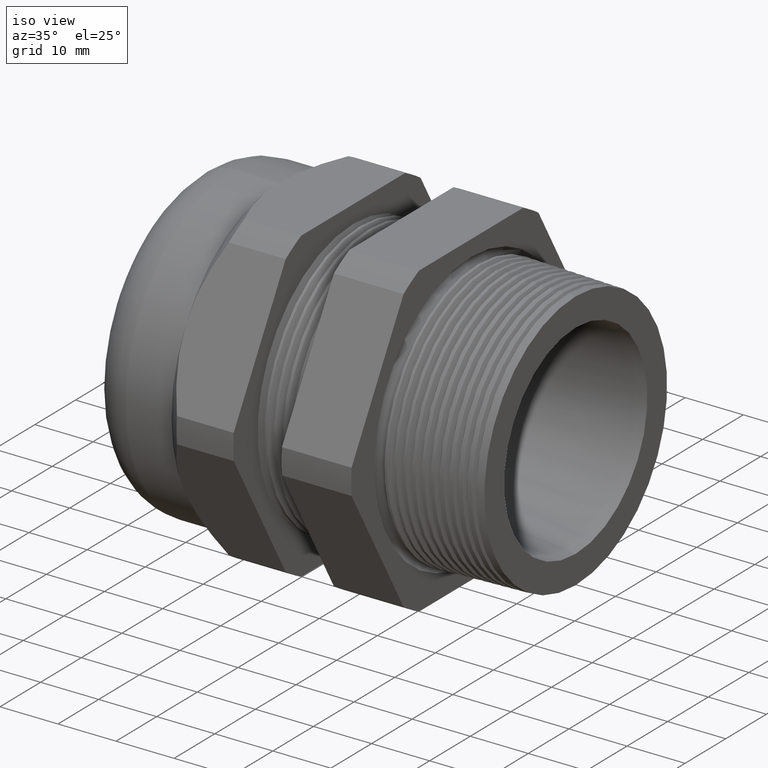
[diagram: clean part render]
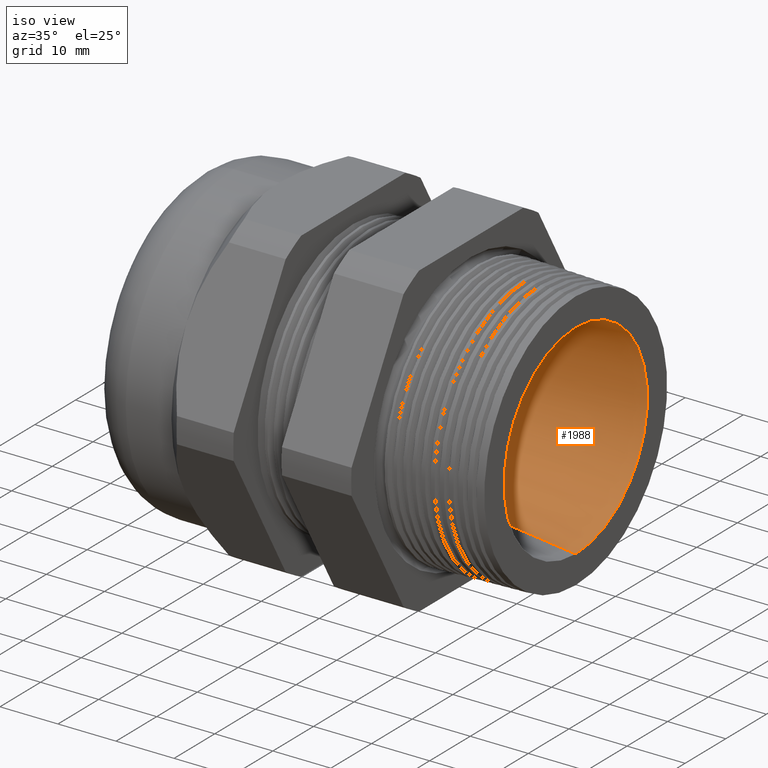
[diagram: same view with one face highlighted and labeled with its STEP entity id]
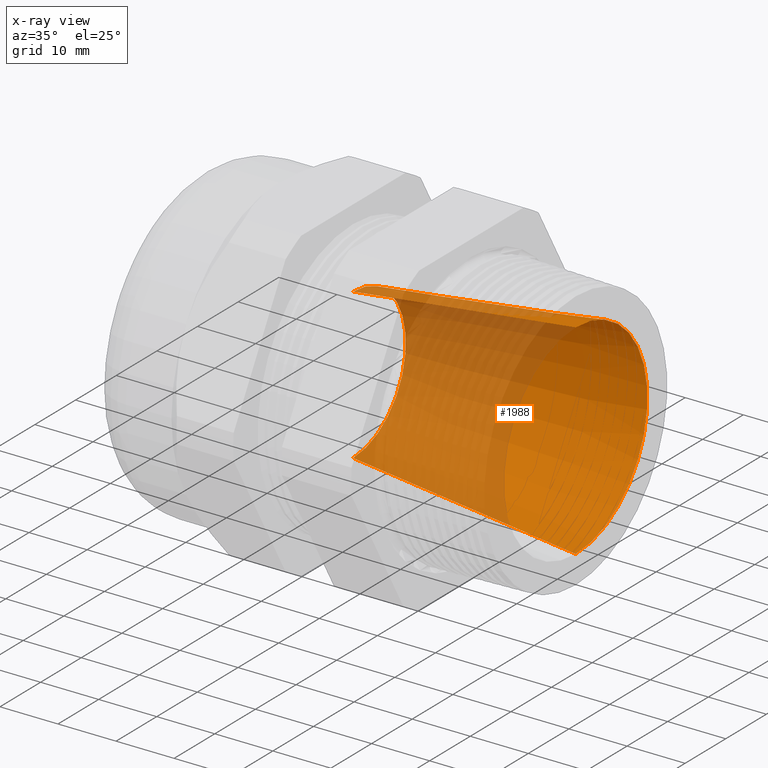
[diagram: x-ray of the same camera — body ghosted, the highlighted face saturated]
A machine part, iso view. The second image highlights one B-rep face of the part: STEP entity #1988.
The next image is the same camera in x-ray: the body ghosted, the highlighted face saturated — about 52% of this face is hidden behind the body in this view.
In plain terms, the highlighted conical surface has half-angle 6.941 deg.
Its self-contained STEP definition (entity closure, byte-faithful):
#30 = CARTESIAN_POINT ( 'NONE',  ( -1.109450000000000700, 0.0000000000000000000, 0.0000000000000000000 ) ) ;
#31 = CONICAL_SURFACE ( 'NONE', #95, 0.5100000000000000100, 0.1211370536420832000 ) ;
#32 = FACE_OUTER_BOUND ( 'NONE', #1989, .T. ) ;
#33 = DIRECTION ( 'NONE',  ( 0.0000000000000000000, 0.0000000000000000000, -1.000000000000000000 ) ) ;
#34 = DIRECTION ( 'NONE',  ( 1.000000000000000000, 0.0000000000000000000, 0.0000000000000000000 ) ) ;
#35 = CARTESIAN_POINT ( 'NONE',  ( -1.109450000000000700, 0.0000000000000000000, 0.0000000000000000000 ) ) ;
#36 = AXIS2_PLACEMENT_3D ( 'NONE', #35, #34, #33 ) ;
#37 = CIRCLE ( 'NONE', #36, 0.5100000000000000100 ) ;
#56 = DIRECTION ( 'NONE',  ( 0.0000000000000000000, 0.0000000000000000000, -1.000000000000000000 ) ) ;
#57 = DIRECTION ( 'NONE',  ( 1.000000000000000000, 0.0000000000000000000, 0.0000000000000000000 ) ) ;
#58 = CARTESIAN_POINT ( 'NONE',  ( 0.4000000000000000800, 0.0000000000000000000, 0.0000000000000000000 ) ) ;
#59 = AXIS2_PLACEMENT_3D ( 'NONE', #58, #57, #56 ) ;
#60 = CIRCLE ( 'NONE', #59, 0.6937500000000000900 ) ;
#93 = DIRECTION ( 'NONE',  ( 0.0000000000000000000, 0.0000000000000000000, -1.000000000000000000 ) ) ;
#94 = DIRECTION ( 'NONE',  ( 1.000000000000000000, 0.0000000000000000000, 0.0000000000000000000 ) ) ;
#95 = AXIS2_PLACEMENT_3D ( 'NONE', #30, #94, #93 ) ;
#810 = CARTESIAN_POINT ( 'NONE',  ( -1.109450000000000700, 6.245698675651502300E-017, 0.5100000000000000100 ) ) ;
#811 = DIRECTION ( 'NONE',  ( 0.9926718748852994000, 1.479875516121243500E-017, 0.1208410063335478000 ) ) ;
#812 = VECTOR ( 'NONE', #811, 39.37007874015748100 ) ;
#813 = CARTESIAN_POINT ( 'NONE',  ( -1.109450000000000700, 6.245698675651502300E-017, 0.5100000000000000100 ) ) ;
#814 = LINE ( 'NONE', #813, #812 ) ;
#815 = CARTESIAN_POINT ( 'NONE',  ( 0.4000000000000000800, 0.0000000000000000000, -0.6937500000000000900 ) ) ;
#816 = DIRECTION ( 'NONE',  ( 0.9926718748852994000, 0.0000000000000000000, -0.1208410063335478000 ) ) ;
#817 = VECTOR ( 'NONE', #816, 39.37007874015748100 ) ;
#818 = CARTESIAN_POINT ( 'NONE',  ( -1.109450000000000700, 0.0000000000000000000, -0.5100000000000000100 ) ) ;
#823 = LINE ( 'NONE', #818, #817 ) ;
#854 = CARTESIAN_POINT ( 'NONE',  ( 0.4000000000000000800, 8.495987169084764700E-017, 0.6937500000000000900 ) ) ;
#855 = CARTESIAN_POINT ( 'NONE',  ( -1.109450000000000700, 0.0000000000000000000, -0.5100000000000000100 ) ) ;
#1969 = EDGE_CURVE ( 'NONE', #2513, #2526, #60, .T. ) ;
#1987 = EDGE_CURVE ( 'NONE', #2525, #2516, #37, .T. ) ;
#1988 = ADVANCED_FACE ( 'NONE', ( #32 ), #31, .F. ) ;
#1989 = EDGE_LOOP ( 'NONE', ( #1990, #1991, #1992, #1993 ) ) ;
#1990 = ORIENTED_EDGE ( 'NONE', *, *, #2514, .F. ) ;
#1991 = ORIENTED_EDGE ( 'NONE', *, *, #1987, .F. ) ;
#1992 = ORIENTED_EDGE ( 'NONE', *, *, #2512, .T. ) ;
#1993 = ORIENTED_EDGE ( 'NONE', *, *, #1969, .T. ) ;
#2512 = EDGE_CURVE ( 'NONE', #2525, #2513, #823, .T. ) ;
#2513 = VERTEX_POINT ( 'NONE', #815 ) ;
#2514 = EDGE_CURVE ( 'NONE', #2516, #2526, #814, .T. ) ;
#2516 = VERTEX_POINT ( 'NONE', #810 ) ;
#2525 = VERTEX_POINT ( 'NONE', #855 ) ;
#2526 = VERTEX_POINT ( 'NONE', #854 ) ;